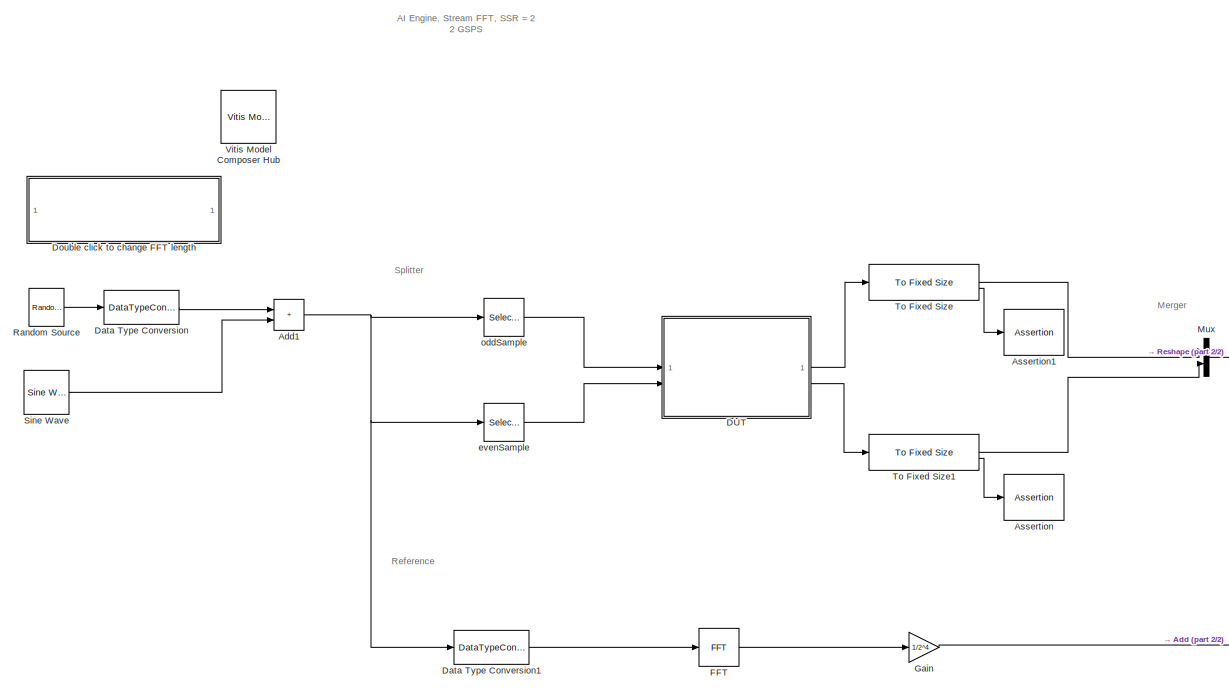
[diagram: root canvas - part 1/2, center side, full height]
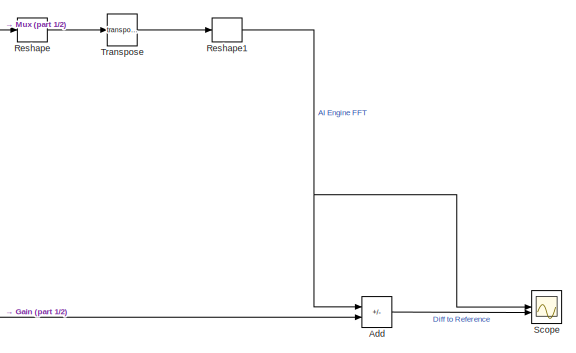
[diagram: root canvas - part 2/2, bottom right region]
MODEL slx_0f817b0763fb
KIND model
CONFIG AbsTol = auto
CONFIG EnableMultiTasking = off
CONFIG FixedStep = auto
CONFIG MaxStep = auto
CONFIG MinStep = auto
CONFIG RelTol = 1e-3
CONFIG SampleTimeConstraint = Unconstrained
CONFIG SolverName = VariableStepAuto
CONFIG StartTime = 0.0
CONFIG StopTime = 0
WORKSPACE source: mxarray member
WORKSPACE FFT_len = 2048
BLOCK [Sum] Add
  IconShape = rectangular
  Inputs = +-
  OutDataTypeStr = double
BLOCK [Sum] Add1
  IconShape = rectangular
BLOCK [Assertion] Assertion
BLOCK [Assertion] Assertion1
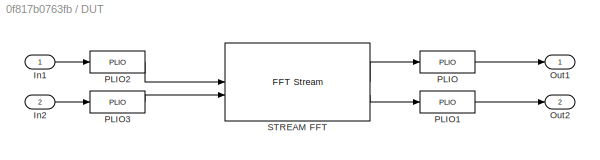
BLOCK [SubSystem] DUT
BLOCK [Inport] DUT/In1
BLOCK [Inport] DUT/In2
  Port = 2
BLOCK [Outport] DUT/Out1
BLOCK [Outport] DUT/Out2
  Port = 2
BLOCK [Reference] DUT/PLIO  REF=aieBasic/PLIO
  SourceBlock = aieBasic/PLIO
  SourceType = PLIO
BLOCK [Reference] DUT/PLIO1  REF=aieBasic/PLIO
  SourceBlock = aieBasic/PLIO
  SourceType = PLIO
BLOCK [Reference] DUT/PLIO2  REF=aieBasic/PLIO
  SourceBlock = aieBasic/PLIO
  SourceType = PLIO
BLOCK [Reference] DUT/PLIO3  REF=aieBasic/PLIO
  SourceBlock = aieBasic/PLIO
  SourceType = PLIO
BLOCK [Reference] DUT/STREAM FFT  REF=aieDSP/FFT Stream
  SourceBlock = aieDSP/FFT Stream
  SourceType = FFT Stream
BLOCK [DataTypeConversion] Data Type Conversion
  OutDataTypeStr = int16
  RndMeth = Floor
  SaturateOnIntegerOverflow = off
BLOCK [DataTypeConversion] Data Type Conversion1
  OutDataTypeStr = double
  RndMeth = Floor
  SaturateOnIntegerOverflow = off
BLOCK [SubSystem] Double click to change FFT length
BLOCK [Reference] FFT  REF=dspxfrm3/FFT
  SourceBlock = dspxfrm3/FFT
  SourceType = FFT
BLOCK [Gain] Gain
  Gain = 1/2^4
BLOCK [Mux] Mux
  DisplayOption = bar
  Inputs = 2
BLOCK [Reference] Random Source  REF=dspobslib/Random
Source
  SourceBlock = dspobslib/Random\nSource
  SourceType = Random Source Obsolete
  UserDataPersistent = on
BLOCK [Reshape] Reshape
  OutputDimensionality = Customize
  OutputDimensions = [FFT_len/2, 2]
BLOCK [Reshape] Reshape1
  OutputDimensions = [1, 10]
BLOCK [Scope] Scope
  Floating = off
  NumInputPorts = 2
  ScopeSpecificationString = Simulink.scopes.TimeScopeBlockCfg('CurrentConfiguration', extmgr.ConfigurationSet(extmgr.Configuration('Core','General UI',true,'DisplayFullSourceName',false,'ShowMainToolbar',true),extmgr.Configuration('Sources','WiredSimulink',true,'DataLogging',false,'DataLoggingVariableName','ScopeData','DataLoggingLimitDataPoints',false,'DataLoggingMaxPoints','5000','DataLoggingDecimateData',false,'DataLoggin...<+2784ch>
BLOCK [Reference] Sine Wave  REF=dspsrcs4/Sine Wave
  SourceBlock = dspsrcs4/Sine Wave
  SourceType = Sine Wave
BLOCK [Reference] To Fixed Size  REF=aieUtilities/To Fixed Size
  SourceBlock = aieUtilities/To Fixed Size
  SourceType = To Fixed Size
BLOCK [Reference] To Fixed Size1  REF=aieUtilities/To Fixed Size
  SourceBlock = aieUtilities/To Fixed Size
  SourceType = To Fixed Size
BLOCK [Math] Transpose
  Operator = transpose
BLOCK [Reference] Vitis Model Composer Hub  REF=vmcUtilities/Vitis Model Composer Hub
  SourceBlock = vmcUtilities/Vitis Model Composer Hub
  SourceType = VMC Hub
  Tag = genX
  UserDataPersistent = on
BLOCK [Selector] evenSample
  IndexOptions = Index vector (dialog)
  Indices = 2:2:FFT_len
  InputPortWidth = FFT_len
  OutputSizes = 1
BLOCK [Selector] oddSample
  IndexOptions = Index vector (dialog)
  Indices = 1:2:FFT_len
  InputPortWidth = FFT_len
  OutputSizes = 1
ANNOTATION (root): AI Engine, Stream FFT, SSR = 2 2 GSPS
ANNOTATION (root): Merger
ANNOTATION (root): Reference
ANNOTATION (root): Splitter
NET Add1:1 -> Data Type Conversion1:1, evenSample:1, oddSample:1
LINE Add:1 -> Scope:2
LINE DUT/In1:1 -> DUT/PLIO2:1
LINE DUT/In2:1 -> DUT/PLIO3:1
LINE DUT/PLIO1:1 -> DUT/Out2:1
LINE DUT/PLIO2:1 -> DUT/STREAM FFT:1
LINE DUT/PLIO3:1 -> DUT/STREAM FFT:2
LINE DUT/PLIO:1 -> DUT/Out1:1
LINE DUT/STREAM FFT:1 -> DUT/PLIO:1
LINE DUT/STREAM FFT:2 -> DUT/PLIO1:1
LINE DUT:1 -> To Fixed Size:1
LINE DUT:2 -> To Fixed Size1:1
LINE Data Type Conversion1:1 -> FFT:1
LINE Data Type Conversion:1 -> Add1:1
LINE FFT:1 -> Gain:1
LINE Gain:1 -> Add:2
LINE Mux:1 -> Reshape:1
LINE Random Source:1 -> Data Type Conversion:1
NET Reshape1:1 -> Add:1, Scope:1
LINE Reshape:1 -> Transpose:1
LINE Sine Wave:1 -> Add1:2
LINE To Fixed Size1:1 -> Mux:2
LINE To Fixed Size1:2 -> Assertion:1
LINE To Fixed Size:1 -> Mux:1
LINE To Fixed Size:2 -> Assertion1:1
LINE Transpose:1 -> Reshape1:1
LINE evenSample:1 -> DUT:2
LINE oddSample:1 -> DUT:1
note: NET lines group one-source signal fan-out (src -> all destinations, sorted); 1:1 wires keep LINE
